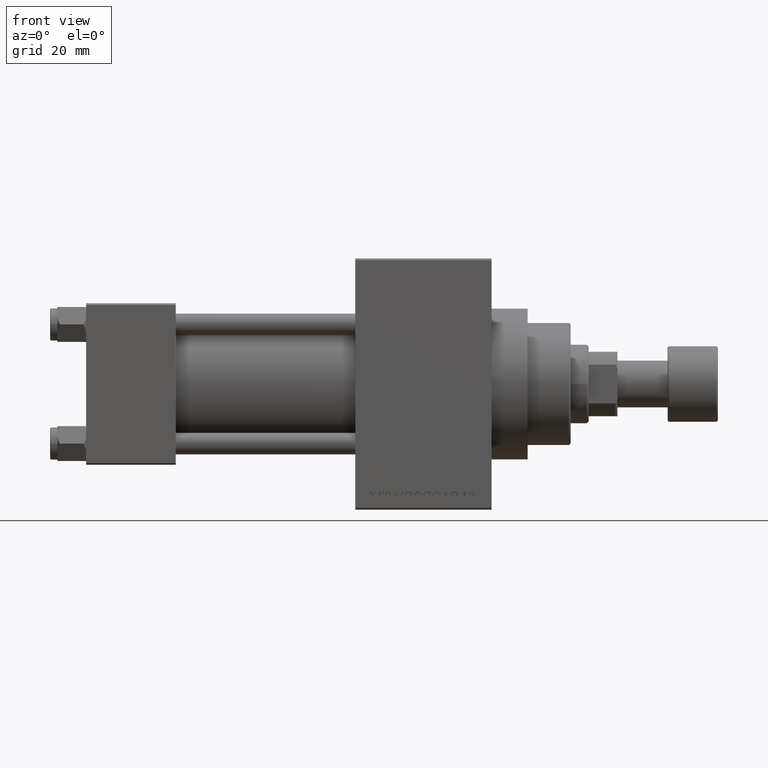
[diagram: clean part render]
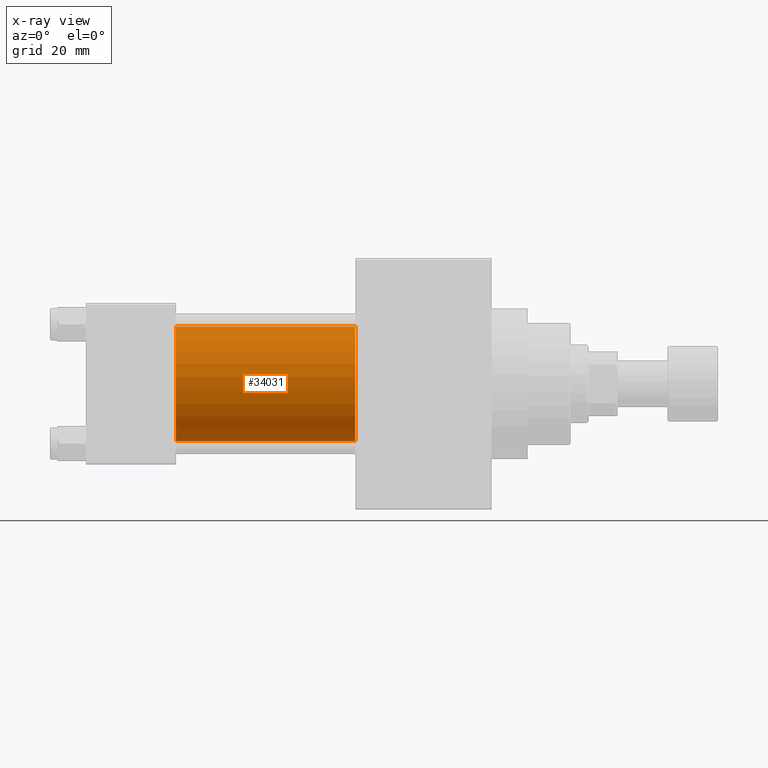
[diagram: x-ray — body ghosted, one internal face saturated and labeled with its STEP entity id]
A machine part, front view, then the same camera in x-ray: the body is ghosted and one INTERNAL B-rep face — a face not visible from any outside direction — is saturated and labeled: STEP entity #34031.
In plain terms, the highlighted cylindrical surface (partial cylindrical patch) has radius 16 mm, axis along (-1, -0, -0).
Its self-contained STEP definition (entity closure, byte-faithful):
#1212 = CARTESIAN_POINT ( 'NONE',  ( 75.00000000000001421, -2.602085213965210642E-15, 0.000000000000000000 ) ) ;
#2191 = VECTOR ( 'NONE', #35448, 1000.000000000000000 ) ;
#2919 = VERTEX_POINT ( 'NONE', #37896 ) ;
#3631 = AXIS2_PLACEMENT_3D ( 'NONE', #1212, #3872, #44510 ) ;
#3872 = DIRECTION ( 'NONE',  ( 1.000000000000000000, 0.000000000000000000, 0.000000000000000000 ) ) ;
#5610 = VERTEX_POINT ( 'NONE', #32742 ) ;
#7369 = DIRECTION ( 'NONE',  ( 1.000000000000000000, 0.000000000000000000, 0.000000000000000000 ) ) ;
#7456 = EDGE_CURVE ( 'NONE', #39601, #33392, #46576, .T. ) ;
#12244 = VECTOR ( 'NONE', #26509, 1000.000000000000000 ) ;
#13345 = ORIENTED_EDGE ( 'NONE', *, *, #19842, .T. ) ;
#13370 = EDGE_CURVE ( 'NONE', #2919, #5610, #39706, .T. ) ;
#19842 = EDGE_CURVE ( 'NONE', #5610, #33392, #46759, .T. ) ;
#22051 = DIRECTION ( 'NONE',  ( 0.000000000000000000, 0.000000000000000000, -1.000000000000000000 ) ) ;
#22078 = EDGE_CURVE ( 'NONE', #2919, #39601, #41173, .T. ) ;
#24495 = DIRECTION ( 'NONE',  ( 0.000000000000000000, 0.000000000000000000, 1.000000000000000000 ) ) ;
#25083 = AXIS2_PLACEMENT_3D ( 'NONE', #40319, #7369, #22051 ) ;
#26509 = DIRECTION ( 'NONE',  ( -1.000000000000000000, -0.000000000000000000, -0.000000000000000000 ) ) ;
#27869 = DIRECTION ( 'NONE',  ( -1.000000000000000000, -0.000000000000000000, -0.000000000000000000 ) ) ;
#28819 = CARTESIAN_POINT ( 'NONE',  ( 75.00000000000001421, -2.602085213965210642E-15, 0.000000000000000000 ) ) ;
#30195 = AXIS2_PLACEMENT_3D ( 'NONE', #28819, #27869, #24495 ) ;
#30994 = CARTESIAN_POINT ( 'NONE',  ( 25.00000000000000000, -2.602085213965210642E-15, 16.00000000000000000 ) ) ;
#32742 = CARTESIAN_POINT ( 'NONE',  ( 75.00000000000001421, -6.426503353294456087E-16, -16.00000000000000000 ) ) ;
#33069 = CARTESIAN_POINT ( 'NONE',  ( 25.00000000000000000, -6.426503353294456087E-16, -16.00000000000000000 ) ) ;
#33155 = EDGE_LOOP ( 'NONE', ( #39082, #13345, #39423, #44228 ) ) ;
#33392 = VERTEX_POINT ( 'NONE', #33069 ) ;
#34031 = ADVANCED_FACE ( 'NONE', ( #47096 ), #43006, .F. ) ;
#35448 = DIRECTION ( 'NONE',  ( -1.000000000000000000, -0.000000000000000000, -0.000000000000000000 ) ) ;
#37896 = CARTESIAN_POINT ( 'NONE',  ( 75.00000000000001421, -2.602085213965210642E-15, 16.00000000000000000 ) ) ;
#39082 = ORIENTED_EDGE ( 'NONE', *, *, #13370, .T. ) ;
#39423 = ORIENTED_EDGE ( 'NONE', *, *, #7456, .F. ) ;
#39601 = VERTEX_POINT ( 'NONE', #30994 ) ;
#39706 = CIRCLE ( 'NONE', #3631, 16.00000000000000000 ) ;
#40319 = CARTESIAN_POINT ( 'NONE',  ( 25.00000000000000000, -2.602085213965210642E-15, 0.000000000000000000 ) ) ;
#41173 = LINE ( 'NONE', #44544, #12244 ) ;
#43006 = CYLINDRICAL_SURFACE ( 'NONE', #30195, 16.00000000000000000 ) ;
#43146 = CARTESIAN_POINT ( 'NONE',  ( 75.00000000000001421, -6.426503353294456087E-16, -16.00000000000000000 ) ) ;
#44228 = ORIENTED_EDGE ( 'NONE', *, *, #22078, .F. ) ;
#44510 = DIRECTION ( 'NONE',  ( 0.000000000000000000, 0.000000000000000000, -1.000000000000000000 ) ) ;
#44544 = CARTESIAN_POINT ( 'NONE',  ( 75.00000000000001421, -2.602085213965210642E-15, 16.00000000000000000 ) ) ;
#46576 = CIRCLE ( 'NONE', #25083, 16.00000000000000000 ) ;
#46759 = LINE ( 'NONE', #43146, #2191 ) ;
#47096 = FACE_OUTER_BOUND ( 'NONE', #33155, .T. ) ;